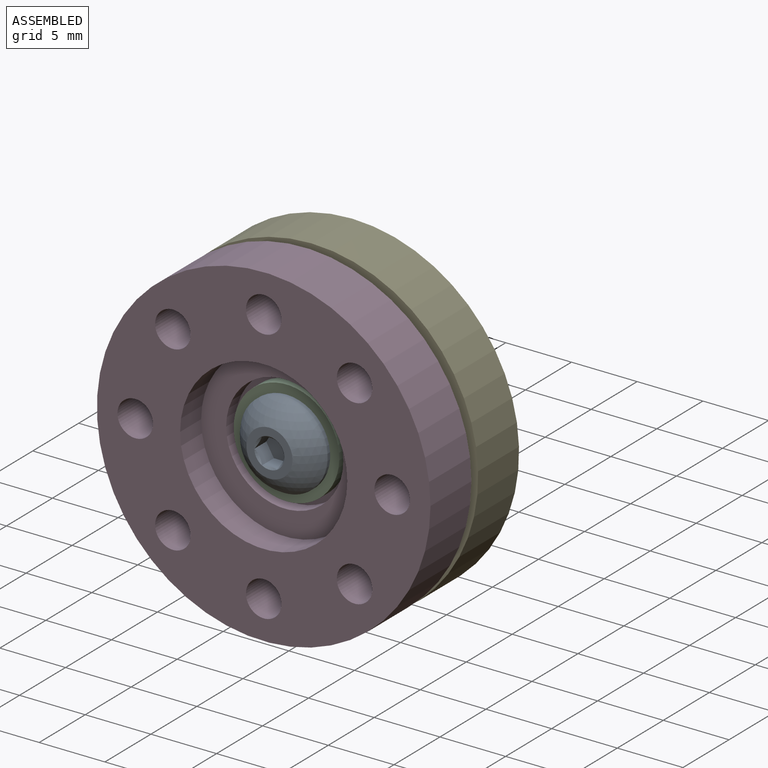
[diagram: assembled view]
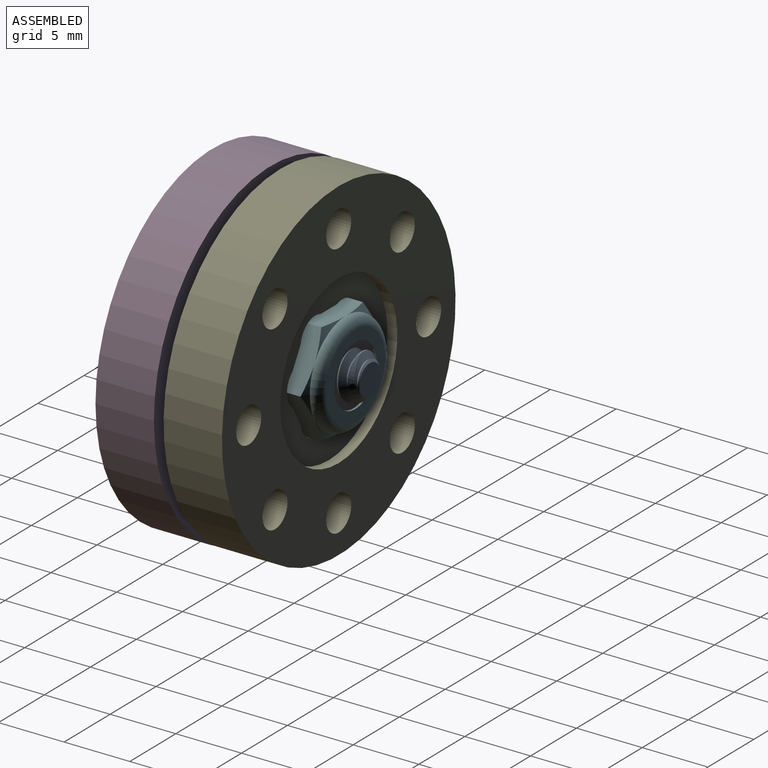
[diagram: assembled view, second angle]
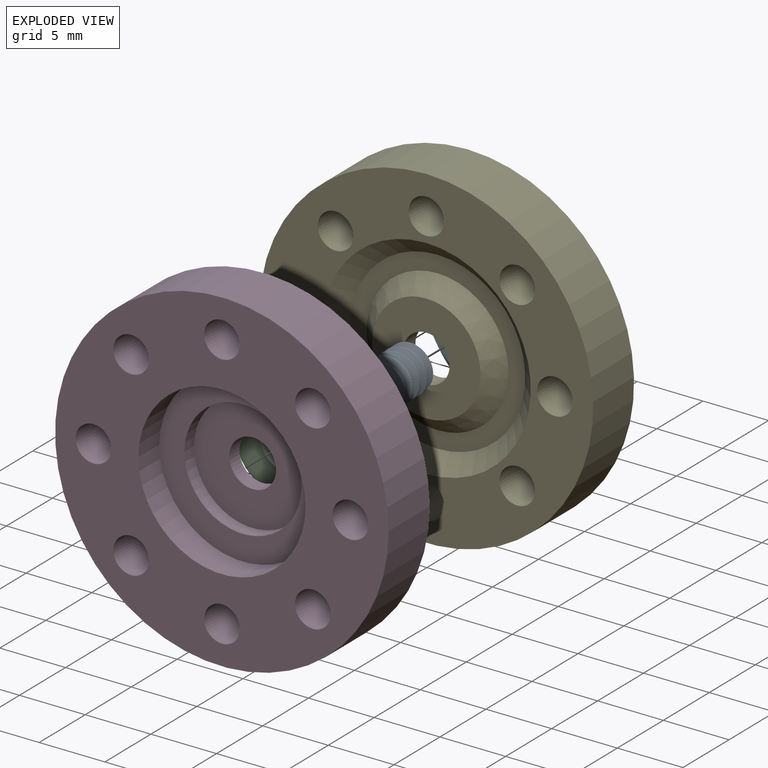
[diagram: exploded view]
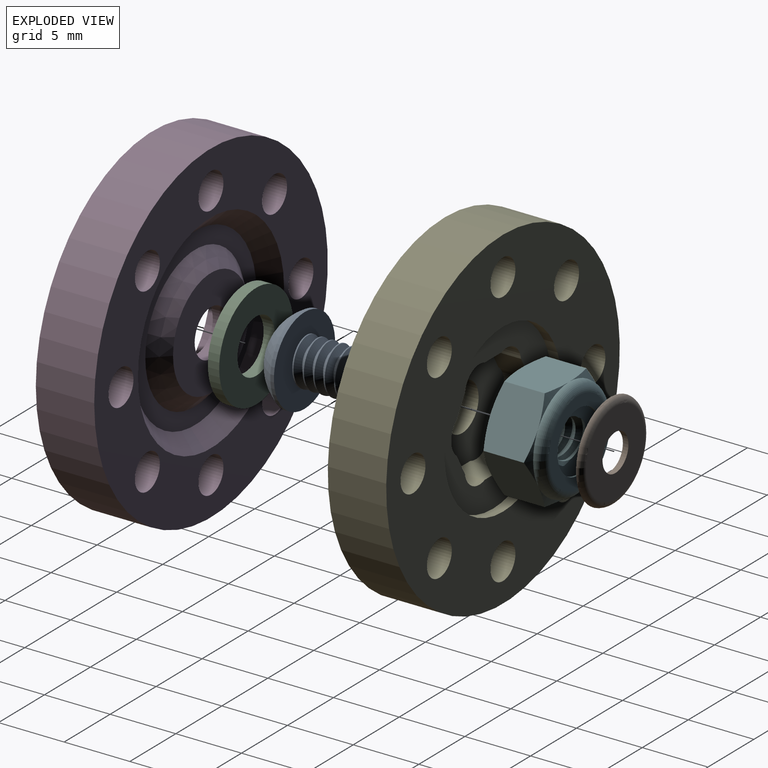
[diagram: exploded view, second angle]
ASSEMBLY  parts=6 mates=5
PART A: 23 faces, bbox 7.1x7.1x12.5 mm
  f0: cone r=1.15mm half-angle=45deg, axis (0,0,1), area 0.1mm2, adj f1,f13
  f1: plane 1.41x1.26mm, normal (-1,0,0), area 1.4mm2, adj f0,f2,f9,f11
  f2: plane 2.29x1.98mm, normal (0,0,1), area 3.4mm2, adj f1,f3,f5,f7,f9,f11
  f3: plane 1.73x1.43mm, normal (0.5,0.87,0), area 1.4mm2, adj f2,f4,f5,f11
  f4: cone r=1.15mm half-angle=45deg, axis (0,0,1), area 0mm2, adj f3,f13
  f5: plane 1.73x1.58mm, normal (1,0,0), area 1.4mm2, adj f2,f3,f6,f7
  f6: cone r=1.15mm half-angle=45deg, axis (0,0,1), area 0mm2, adj f5,f13
  f7: plane 1.73x1.43mm, normal (0.5,-0.87,0), area 1.4mm2, adj f2,f5,f8,f9
  f8: cone r=1.15mm half-angle=45deg, axis (0,0,1), area 0mm2, adj f7,f13
  f9: plane 1.73x1.43mm, normal (-0.5,-0.87,0), area 1.4mm2, adj f1,f2,f7,f10
  f10: cone r=1.15mm half-angle=45deg, axis (0,0,1), area 0mm2, adj f9,f13
  f11: plane 1.73x1.43mm, normal (-0.5,0.87,0), area 1.4mm2, adj f1,f2,f3,f12
  f12: cone r=1.15mm half-angle=45deg, axis (0,0,1), area 0mm2, adj f11,f13
  f13: plane 3.51x3.51mm, normal (0,0,1), area 5.5mm2, adj f0,f4,f6,f8,f10,f12,f14
  f14: sphere r=3.76mm, area 37.2mm2, adj f13,f15
  f15: cylinder r=3.33mm len=6.65mm, axis (0,0,1), area 5.8mm2, adj f14,f16
  f16: plane 6.96x6.96mm, normal (0,0,-1), area 27.7mm2, adj f15,f17,f20,f21,f22
  f17: bspline ~10.04x2.83mm, area 64.8mm2, adj f16,f18,f20,f22
  f18: cone r=1.16mm half-angle=45deg, axis (0,0,1), area 4.1mm2, adj f17,f19,f20,f21,f22
  f19: plane 2.31x2.31mm, normal (0,0,-1), area 4.2mm2, adj f18
  f20: bspline ~9.64x2.47mm, area 9.2mm2, adj f16,f17,f18,f21
  f21: bspline ~9.82x3.51mm, area 64.8mm2, adj f16,f18,f20,f22
  f22: cylinder r=1.75mm len=8.93mm, axis (0,0,-1), area 12.3mm2, adj f16,f17,f18,f21
PART B: 4 faces, bbox 8x0.5x8 mm
  f0: torus R=3.19mm, axis (0,-1,0), area 15.5mm2, adj f2,f3
  f1: cylinder r=1.41mm len=2.82mm, axis (0,-1,0), area 3.7mm2, adj f2,f3
  f2: plane 7.37x7.37mm, normal (0,-1,0), area 36.4mm2, adj f0,f1
  f3: plane 6.38x6.38mm, normal (0,1,0), area 25.7mm2, adj f0,f1
PART C: 4 faces, bbox 8x0.9x8 mm
  f0: cylinder r=2.04mm len=4.08mm, axis (0,-1,0), area 11.1mm2, adj f2,f3
  f1: cylinder r=4.02mm len=8.04mm, axis (0,-1,0), area 21.8mm2, adj f2,f3
  f2: plane 8.04x8.04mm, normal (0,1,0), area 37.7mm2, adj f0,f1
  f3: plane 8.04x8.04mm, normal (0,-1,0), area 37.7mm2, adj f0,f1
PART D: 20 faces, bbox 25.4x4.4x25.4 mm
  f0: cylinder r=4.46mm len=8.92mm, axis (0,1,0), area 29.5mm2, adj f16,f19
  f1: cone r=7.95mm half-angle=46.2deg, axis (0,-1,0), area 80.9mm2, adj f14,f17
  f2: cone r=5.4mm half-angle=46.2deg, axis (0,1,0), area 52.7mm2, adj f17,f18
  f3: cylinder r=1.35mm len=4.45mm, axis (0,1,0), area 37.8mm2, adj f14,f15
  f4: cylinder r=1.35mm len=4.45mm, axis (0,1,0), area 37.8mm2, adj f14,f15
  f5: cylinder r=1.35mm len=4.45mm, axis (0,1,0), area 37.8mm2, adj f14,f15
  f6: cylinder r=1.35mm len=4.45mm, axis (0,1,0), area 37.8mm2, adj f14,f15
  f7: cylinder r=1.35mm len=4.45mm, axis (0,1,0), area 37.8mm2, adj f14,f15
  f8: cylinder r=1.35mm len=4.45mm, axis (0,1,0), area 37.8mm2, adj f14,f15
  f9: cylinder r=1.35mm len=4.45mm, axis (0,1,0), area 37.8mm2, adj f14,f15
  f10: cylinder r=1.35mm len=4.45mm, axis (0,1,0), area 37.8mm2, adj f14,f15
  f11: cylinder r=6.36mm len=12.73mm, axis (0,1,0), area 91.4mm2, adj f15,f16
  f12: cylinder r=12.7mm len=25.39mm, axis (0,-1,0), area 354.6mm2, adj f14,f15
  f13: cylinder r=1.78mm len=3.56mm, axis (0,1,0), area 12.3mm2, adj f18,f19
  f14: plane 25.39x25.39mm, normal (0,-1,0), area 262mm2, adj f1,f3,f4,f5,f6,f7,f8,f9
  f15: plane 25.39x25.39mm, normal (0,1,0), area 333.2mm2, adj f3,f4,f5,f6,f7,f8,f9,f10
  f16: plane 12.73x12.73mm, normal (0,1,0), area 64.8mm2, adj f0,f11
  f17: plane 13.35x13.35mm, normal (0,-1,0), area 48.4mm2, adj f1,f2
  f18: plane 8.26x8.26mm, normal (0,-1,0), area 43.6mm2, adj f2,f13
  f19: plane 8.92x8.92mm, normal (0,1,0), area 52.5mm2, adj f0,f13
PART E: 31 faces, bbox 25.4x4.4x25.4 mm
  f0: cone r=7.95mm half-angle=46.2deg, axis (0,-1,0), area 80.9mm2, adj f16,f30
  f1: cone r=5.4mm half-angle=46.2deg, axis (0,1,0), area 52.7mm2, adj f15,f30
  f2: cylinder r=1.35mm len=4.45mm, axis (0,1,0), area 37.8mm2, adj f16,f17
  f3: cylinder r=1.35mm len=4.45mm, axis (0,1,0), area 37.8mm2, adj f16,f17
  f4: cylinder r=1.35mm len=4.45mm, axis (0,1,0), area 37.8mm2, adj f16,f17
  f5: cylinder r=1.35mm len=4.45mm, axis (0,1,0), area 37.8mm2, adj f16,f17
  f6: cylinder r=1.35mm len=4.45mm, axis (0,1,0), area 37.8mm2, adj f16,f17
  f7: cylinder r=1.35mm len=4.45mm, axis (0,1,0), area 37.8mm2, adj f16,f17
  f8: cylinder r=1.35mm len=4.45mm, axis (0,1,0), area 37.8mm2, adj f16,f17
  f9: cylinder r=1.35mm len=4.45mm, axis (0,1,0), area 37.8mm2, adj f16,f17
  f10: cylinder r=1.78mm len=3.56mm, axis (0,1,0), area 15mm2, adj f15,f29
  f11: cylinder r=1.59mm len=2.34mm, axis (0,1,0), area 6.7mm2, adj f18,f24,f25,f29
  f12: cylinder r=1.59mm len=2.34mm, axis (0,1,0), area 6.7mm2, adj f18,f23,f24,f29
  f13: cylinder r=6.36mm len=12.73mm, axis (0,1,0), area 30.5mm2, adj f17,f18
  f14: cylinder r=12.7mm len=25.39mm, axis (0,-1,0), area 354.6mm2, adj f16,f17
  f15: plane 8.26x8.26mm, normal (0,-1,0), area 43.6mm2, adj f1,f10
  f16: plane 25.39x25.39mm, normal (0,-1,0), area 262mm2, adj f0,f2,f3,f4,f5,f6,f7,f8
  f17: plane 25.39x25.39mm, normal (0,1,0), area 333.2mm2, adj f2,f3,f4,f5,f6,f7,f8,f9
  f18: plane 12.73x12.73mm, normal (0,1,0), area 69.9mm2, adj f11,f12,f13,f19,f20,f21,f22,f23
  f19: plane 2.34x1.77mm, normal (0,0,1), area 4.1mm2, adj f18,f20,f28,f29
  f20: cylinder r=1.59mm len=2.34mm, axis (0,1,0), area 6.7mm2, adj f18,f19,f21,f29
  f21: plane 2.34x1.53mm, normal (-0.87,0,0.5), area 4.1mm2, adj f18,f20,f22,f29
  f22: cylinder r=1.59mm len=2.5mm, axis (0,1,0), area 6.7mm2, adj f18,f21,f23,f29
  f23: plane 2.34x1.53mm, normal (-0.87,0,-0.5), area 4.1mm2, adj f12,f18,f22,f29
  f24: plane 2.34x1.77mm, normal (0,0,-1), area 4.1mm2, adj f11,f12,f18,f29
  f25: plane 2.34x1.53mm, normal (0.87,0,-0.5), area 4.1mm2, adj f11,f18,f26,f29
  f26: cylinder r=1.59mm len=2.5mm, axis (0,1,0), area 6.7mm2, adj f18,f25,f27,f29
  f27: plane 2.34x1.53mm, normal (0.87,0,0.5), area 4.1mm2, adj f18,f26,f28,f29
  f28: cylinder r=1.59mm len=2.34mm, axis (0,1,0), area 6.7mm2, adj f18,f19,f27,f29
  f29: plane 9.09x8.29mm, normal (0,1,0), area 47.3mm2, adj f10,f11,f12,f19,f20,f21,f22,f23
  f30: plane 13.35x13.35mm, normal (0,-1,0), area 48.4mm2, adj f0,f1
PART F: 50 faces, bbox 9.4x4.8x9.4 mm
  f0: cylinder r=2.3mm len=4.6mm, axis (0,-1,0), area 2.2mm2, adj f1,f49
  f1: plane 6.38x6.38mm, normal (0,1,0), area 15.4mm2, adj f0,f2
  f2: torus R=3.19mm, axis (0,-1,0), area 26.2mm2, adj f1,f3,f44,f45,f46,f47,f48
  f3: cone r=3.92mm half-angle=65deg, axis (0,-1,0), area 1.4mm2, adj f2,f4,f43
  f4: plane 4.27x3.99mm, normal (0.5,0,-0.87), area 15.6mm2, adj f3,f5,f41,f42,f43,f48
  f5: cone r=4.52mm half-angle=65deg, axis (0,1,0), area 1.4mm2, adj f4,f6,f42
  f6: plane 7.84x7.84mm, normal (0,-1,0), area 38.6mm2, adj f5,f7,f31,f33,f34,f38,f39,f40
  f7: cone r=1.75mm half-angle=65deg, axis (0,-1,0), area 1.4mm2, adj f6,f8,f9,f10
  f8: cone r=1.47mm half-angle=60deg, axis (0,-0.98,-0.22), area 1.9mm2, adj f7,f9,f33
  f9: cylinder r=1.47mm len=2.94mm, axis (0,0.98,0.22), area 1.3mm2, adj f7,f8,f10
  f10: cone r=1.9mm half-angle=60deg, axis (0,0.98,0.22), area 4mm2, adj f7,f9,f11
  f11: cylinder r=1.75mm len=3.51mm, axis (0,-1,0), area 2.4mm2, adj f10,f12
  f12: cone r=1.47mm half-angle=60deg, axis (0,-0.98,-0.22), area 4mm2, adj f11,f13
  f13: cylinder r=1.47mm len=2.94mm, axis (0,0.98,0.22), area 1.8mm2, adj f12,f14
  f14: cone r=1.9mm half-angle=60deg, axis (0,0.98,0.22), area 4mm2, adj f13,f15
  f15: cylinder r=1.75mm len=3.51mm, axis (0,-1,0), area 2.4mm2, adj f14,f16
  f16: cone r=1.47mm half-angle=60deg, axis (0,-0.98,-0.22), area 4mm2, adj f15,f17
  f17: cylinder r=1.47mm len=2.94mm, axis (0,0.98,0.22), area 1.8mm2, adj f16,f18
  f18: cone r=1.9mm half-angle=60deg, axis (0,0.98,0.22), area 4mm2, adj f17,f19
  f19: cylinder r=1.75mm len=3.51mm, axis (0,-1,0), area 2.4mm2, adj f18,f20
  f20: cone r=1.47mm half-angle=60deg, axis (0,-0.98,-0.22), area 4mm2, adj f19,f21
  f21: cylinder r=1.47mm len=2.94mm, axis (0,0.98,0.22), area 1.8mm2, adj f20,f22
  f22: cone r=1.9mm half-angle=60deg, axis (0,0.98,0.22), area 4mm2, adj f21,f23
  f23: cylinder r=1.75mm len=3.51mm, axis (0,-1,0), area 2.4mm2, adj f22,f24,f29
  f24: cone r=1.47mm half-angle=60deg, axis (0,-0.98,-0.22), area 3.5mm2, adj f23,f25,f29
  f25: cylinder r=1.47mm len=2.94mm, axis (0,0.98,0.22), area 1.2mm2, adj f24,f26,f29
  f26: cone r=1.9mm half-angle=60deg, axis (0,0.98,0.22), area 1.5mm2, adj f25,f27,f29
  f27: cylinder r=1.75mm len=3.3mm, axis (0,-1,0), area 0.6mm2, adj f26,f28,f29
  f28: cone r=1.47mm half-angle=60deg, axis (0,-0.98,-0.22), area 0mm2, adj f27,f29
  f29: plane 7.68x7.68mm, normal (0,1,0), area 36.1mm2, adj f23,f24,f25,f26,f27,f28,f30
  f30: torus R=3.19mm, axis (0,-1,0), area 20.2mm2, adj f29,f49
  f31: cone r=1.75mm half-angle=65deg, axis (0,-1,0), area 0.4mm2, adj f6,f32
  f32: cone r=1.9mm half-angle=60deg, axis (0,0.98,0.22), area 0.5mm2, adj f31,f33
  f33: cylinder r=1.75mm len=3.51mm, axis (0,-1,0), area 0.9mm2, adj f6,f8,f32
  f34: cone r=4.52mm half-angle=65deg, axis (0,1,0), area 1.4mm2, adj f6,f35,f42
  f35: plane 4.88x3.99mm, normal (-1,0,0), area 15.6mm2, adj f34,f36,f38,f42,f46,f47
  f36: plane 4.27x3.99mm, normal (-0.5,0,0.87), area 15.6mm2, adj f35,f37,f38,f39,f45,f46
  f37: plane 4.27x3.99mm, normal (0.5,0,0.87), area 15.6mm2, adj f36,f39,f40,f43,f44,f45
  f38: cone r=4.52mm half-angle=65deg, axis (0,1,0), area 1.4mm2, adj f6,f35,f36
  f39: cone r=4.52mm half-angle=65deg, axis (0,1,0), area 1.4mm2, adj f6,f36,f37
  f40: cone r=4.52mm half-angle=65deg, axis (0,1,0), area 1.4mm2, adj f6,f37,f43
  f41: cone r=4.52mm half-angle=65deg, axis (0,1,0), area 1.4mm2, adj f4,f6,f43
  f42: plane 4.27x3.99mm, normal (-0.5,0,-0.87), area 15.6mm2, adj f4,f5,f34,f35,f47,f48
  f43: plane 4.88x3.99mm, normal (1,0,0), area 15.6mm2, adj f3,f4,f37,f40,f41,f44
  f44: cone r=3.92mm half-angle=65deg, axis (0,-1,0), area 1.4mm2, adj f2,f37,f43
  f45: cone r=3.92mm half-angle=65deg, axis (0,-1,0), area 1.4mm2, adj f2,f36,f37
  f46: cone r=3.92mm half-angle=65deg, axis (0,-1,0), area 1.4mm2, adj f2,f35,f36
  f47: cone r=3.92mm half-angle=65deg, axis (0,-1,0), area 1.4mm2, adj f2,f35,f42
  f48: cone r=3.92mm half-angle=65deg, axis (0,-1,0), area 1.4mm2, adj f2,f4,f42
  f49: plane 6.38x6.38mm, normal (0,-1,0), area 15.4mm2, adj f0,f30
PLACE A rot(axis=(0.58,-0.58,0.58),120deg) t=(-46.41,-15.09,26.63)mm
PLACE B rot(axis=(0,1,0),90deg) t=(-46.41,-9.26,26.63)mm
PLACE C rot(axis=(0,-1,0),180deg) t=(-46.41,-13.24,26.63)mm
PLACE D rot(axis=(0.71,0,0.71),180deg) t=(-46.41,-11.27,26.63)mm
PLACE E t=(-46.41,-10.53,26.63)mm
PLACE F rot(axis=(0,1,0),90deg) t=(-46.41,-9.19,26.63)mm
MATE fastened A.f0 <-> C.f0  axis (0,-1,0) through (-46.41,-13.24,26.63)mm
MATE fastened B.f0 <-> F.f30  axis (0,-1,0) through (-46.41,-5.55,26.63)mm
MATE fastened C.f0 <-> D.f0  axis (0,1,0) through (-46.41,-12.38,26.63)mm
MATE fastened E.f0 <-> F.f2  axis (0,1,0) through (-46.41,-9.19,26.63)mm
MATE fastened E.f0 <-> D.f0  axis (0,1,0) through (-46.41,-10.53,26.63)mm
